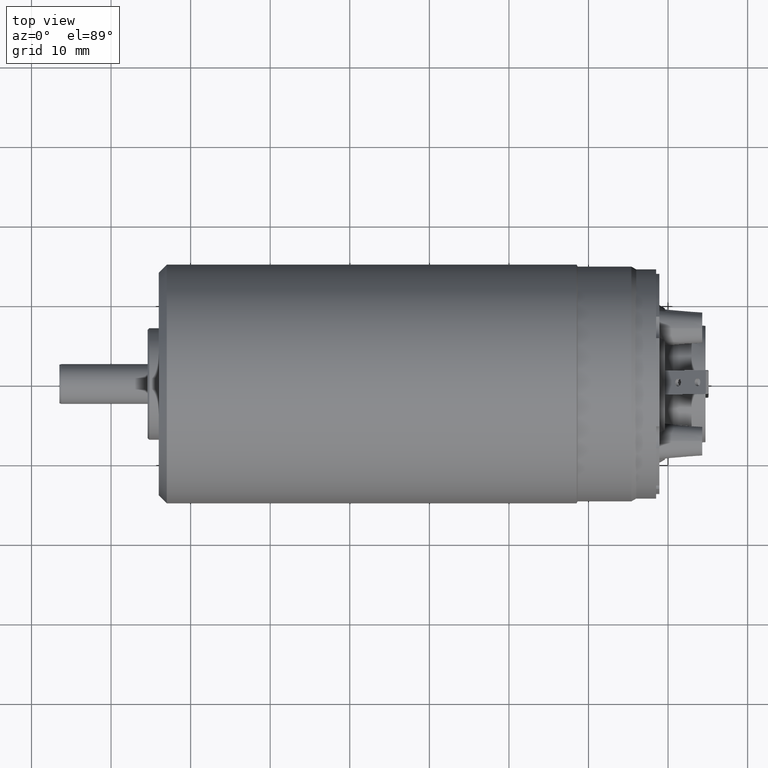
[diagram: clean part render]
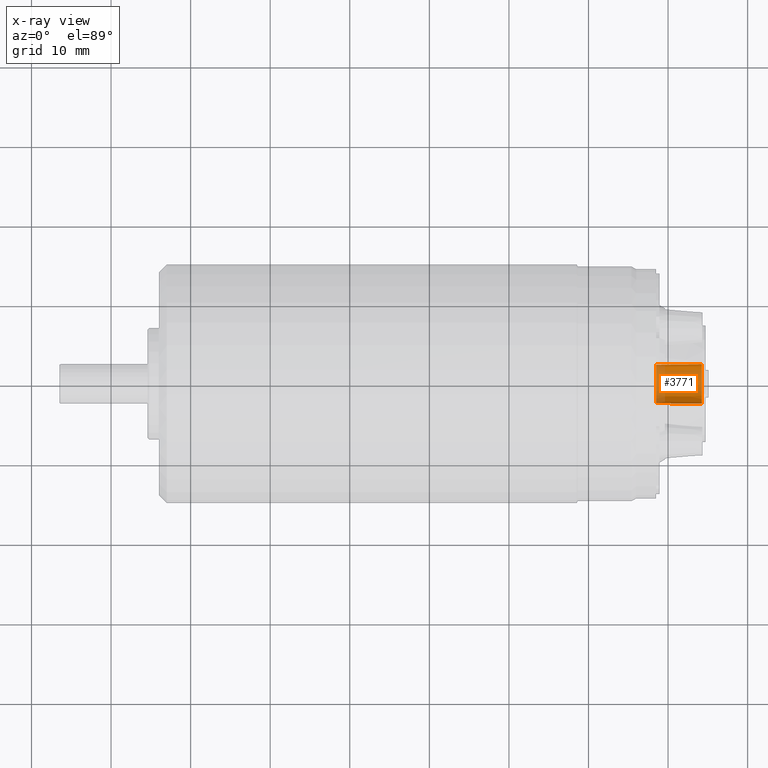
[diagram: x-ray — body ghosted, one internal face saturated and labeled with its STEP entity id]
A machine part, top view, then the same camera in x-ray: the body is ghosted and one INTERNAL B-rep face — a face not visible from any outside direction — is saturated and labeled: STEP entity #3771.
In plain terms, the highlighted conical surface has half-angle 0.776 deg.
Its self-contained STEP definition (entity closure, byte-faithful):
#929=CARTESIAN_POINT('',(8.5E0,0.E0,0.E0));
#930=DIRECTION('',(1.E0,0.E0,0.E0));
#931=DIRECTION('',(0.E0,-1.E0,0.E0));
#932=AXIS2_PLACEMENT_3D('',#929,#930,#931);
#952=DIRECTION('',(-9.999085256420E-1,1.352554429308E-2,-1.918832043136E-8));
#953=VECTOR('',#952,5.750532071129E0);
#954=CARTESIAN_POINT('',(1.425000604490E1,-2.496549152179E0,1.103430520317E-7));
#955=LINE('',#954,#953);
#956=DIRECTION('',(-9.999085256420E-1,-1.352554429308E-2,1.918832033797E-8));
#957=VECTOR('',#956,5.750532071129E0);
#958=CARTESIAN_POINT('',(1.425000604490E1,2.496549152179E0,-1.103430520317E-7));
#959=LINE('',#958,#957);
#998=CARTESIAN_POINT('',(1.424992319491E1,0.E0,0.E0));
#999=DIRECTION('',(1.E0,0.E0,0.E0));
#1000=DIRECTION('',(0.E0,-1.E0,0.E0));
#1001=AXIS2_PLACEMENT_3D('',#998,#999,#1000);
#2498=CARTESIAN_POINT('',(8.5E0,-2.418770075942E0,0.E0));
#2500=VERTEX_POINT('',#2498);
#2502=CARTESIAN_POINT('',(8.5E0,2.418770075942E0,0.E0));
#2504=VERTEX_POINT('',#2502);
#2582=CARTESIAN_POINT('',(1.424992319491E1,-2.496614380019E0,0.E0));
#2583=CARTESIAN_POINT('',(1.424992319491E1,2.496614380019E0,0.E0));
#2584=VERTEX_POINT('',#2582);
#2585=VERTEX_POINT('',#2583);
#3760=CARTESIAN_POINT('',(1.137504276838E1,0.E0,0.E0));
#3761=DIRECTION('',(1.E0,0.E0,0.E0));
#3762=DIRECTION('',(0.E0,-1.E0,0.E0));
#3763=AXIS2_PLACEMENT_3D('',#3760,#3761,#3762);
#3764=CONICAL_SURFACE('',#3763,2.457693326898E0,7.756412506732E-1);
#3765=ORIENTED_EDGE('',*,*,#3754,.T.);
#3766=ORIENTED_EDGE('',*,*,#3688,.T.);
#3767=ORIENTED_EDGE('',*,*,#3657,.F.);
#3768=ORIENTED_EDGE('',*,*,#3685,.F.);
#3769=EDGE_LOOP('',(#3765,#3766,#3767,#3768));
#3770=FACE_OUTER_BOUND('',#3769,.F.);
#3771=ADVANCED_FACE('',(#3770),#3764,.T.);
#933=CIRCLE('',#932,2.418770075942E0);
#1002=CIRCLE('',#1001,2.496614380019E0);
#3657=EDGE_CURVE('',#2500,#2504,#933,.T.);
#3685=EDGE_CURVE('',#2584,#2500,#955,.T.);
#3688=EDGE_CURVE('',#2585,#2504,#959,.T.);
#3754=EDGE_CURVE('',#2584,#2585,#1002,.T.);